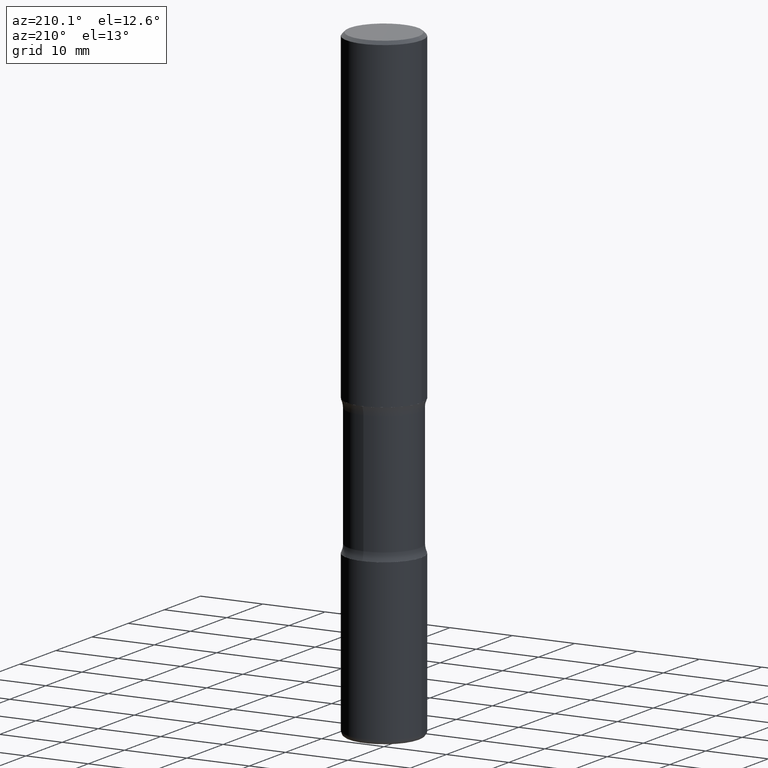
[diagram: clean part render]
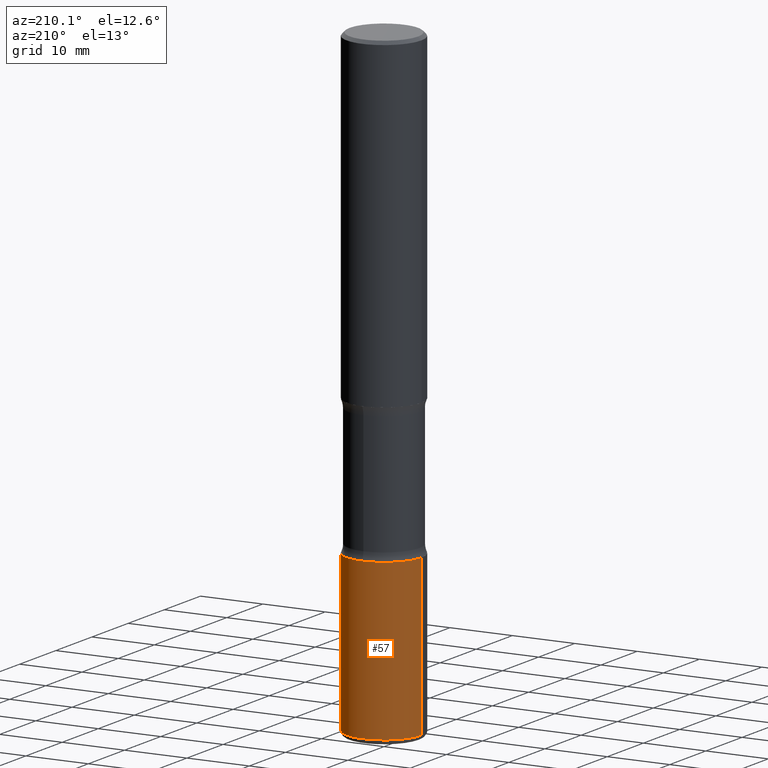
[diagram: same view with one face highlighted and labeled with its STEP entity id]
A machine part, auxiliary view. The second image highlights one B-rep face of the part: STEP entity #57.
In plain terms, the highlighted cylindrical surface (partial cylindrical patch) has radius 5.9995 mm, axis along (-0, 0, 1).
Its self-contained STEP definition (entity closure, byte-faithful):
#5 = CIRCLE ( 'NONE', #410, 0.2362000000000002431 ) ;
#6 = VERTEX_POINT ( 'NONE', #487 ) ;
#57 = ADVANCED_FACE ( 'NONE', ( #545 ), #104, .T. ) ;
#60 = AXIS2_PLACEMENT_3D ( 'NONE', #472, #556, #339 ) ;
#66 = DIRECTION ( 'NONE',  ( 1.000000000000000000, -6.982962677686265922E-15, 0.000000000000000000 ) ) ;
#71 = CARTESIAN_POINT ( 'NONE',  ( -0.2362000000000000766, -1.196291564899481365E-14, -3.907000000000000028 ) ) ;
#73 = DIRECTION ( 'NONE',  ( 1.000000000000000000, -6.982962677686266711E-15, 4.876176775795935793E-29 ) ) ;
#81 = CARTESIAN_POINT ( 'NONE',  ( 0.2362000000000002153, -1.649375784469497708E-15, 1.151752954443001069E-29 ) ) ;
#87 = DIRECTION ( 'NONE',  ( -2.445468806185136877E-29, 3.491481338843145188E-15, 1.000000000000000000 ) ) ;
#92 = VERTEX_POINT ( 'NONE', #233 ) ;
#104 = CYLINDRICAL_SURFACE ( 'NONE', #540, 0.2362000000000002153 ) ;
#110 = VECTOR ( 'NONE', #332, 39.37007874015748143 ) ;
#137 = VERTEX_POINT ( 'NONE', #71 ) ;
#141 = VERTEX_POINT ( 'NONE', #155 ) ;
#155 = CARTESIAN_POINT ( 'NONE',  ( 0.2362000000000000766, -1.529059337532966657E-14, -3.907000000000000028 ) ) ;
#157 = CARTESIAN_POINT ( 'NONE',  ( -0.2362000000000002153, 1.678301941865358169E-15, -1.161852468318209878E-29 ) ) ;
#165 = ORIENTED_EDGE ( 'NONE', *, *, #457, .T. ) ;
#181 = EDGE_LOOP ( 'NONE', ( #165, #438, #480, #333 ) ) ;
#230 = EDGE_CURVE ( 'NONE', #137, #92, #252, .T. ) ;
#233 = CARTESIAN_POINT ( 'NONE',  ( -0.2362000000000001321, -1.022834771985753829E-14, -2.913400000000000212 ) ) ;
#248 = EDGE_CURVE ( 'NONE', #6, #92, #464, .T. ) ;
#252 = LINE ( 'NONE', #157, #110 ) ;
#291 = EDGE_CURVE ( 'NONE', #141, #6, #301, .T. ) ;
#301 = LINE ( 'NONE', #81, #485 ) ;
#321 = CARTESIAN_POINT ( 'NONE',  ( 0.000000000000000000, 0.000000000000000000, 0.000000000000000000 ) ) ;
#332 = DIRECTION ( 'NONE',  ( -2.445468806185136877E-29, 3.491481338843145188E-15, 1.000000000000000000 ) ) ;
#333 = ORIENTED_EDGE ( 'NONE', *, *, #291, .F. ) ;
#339 = DIRECTION ( 'NONE',  ( 1.000000000000000000, -6.982962677686269077E-15, 0.000000000000000000 ) ) ;
#410 = AXIS2_PLACEMENT_3D ( 'NONE', #495, #442, #66 ) ;
#438 = ORIENTED_EDGE ( 'NONE', *, *, #230, .T. ) ;
#442 = DIRECTION ( 'NONE',  ( -2.445468806185136597E-29, 3.491481338843145583E-15, 1.000000000000000000 ) ) ;
#457 = EDGE_CURVE ( 'NONE', #141, #137, #5, .T. ) ;
#464 = CIRCLE ( 'NONE', #60, 0.2362000000000001321 ) ;
#472 = CARTESIAN_POINT ( 'NONE',  ( 7.124628819939777829E-29, -1.017208173258562247E-14, -2.913400000000000212 ) ) ;
#480 = ORIENTED_EDGE ( 'NONE', *, *, #248, .F. ) ;
#485 = VECTOR ( 'NONE', #87, 39.37007874015748143 ) ;
#487 = CARTESIAN_POINT ( 'NONE',  ( 0.2362000000000001321, -1.182145751705511899E-14, -2.913400000000000212 ) ) ;
#495 = CARTESIAN_POINT ( 'NONE',  ( 9.554446625765329033E-29, -1.364121759086017004E-14, -3.907000000000000028 ) ) ;
#540 = AXIS2_PLACEMENT_3D ( 'NONE', #321, #548, #73 ) ;
#545 = FACE_OUTER_BOUND ( 'NONE', #181, .T. ) ;
#548 = DIRECTION ( 'NONE',  ( -2.445468806185136597E-29, 3.491481338843145583E-15, 1.000000000000000000 ) ) ;
#556 = DIRECTION ( 'NONE',  ( -2.445468806185136597E-29, 3.491481338843145583E-15, 1.000000000000000000 ) ) ;